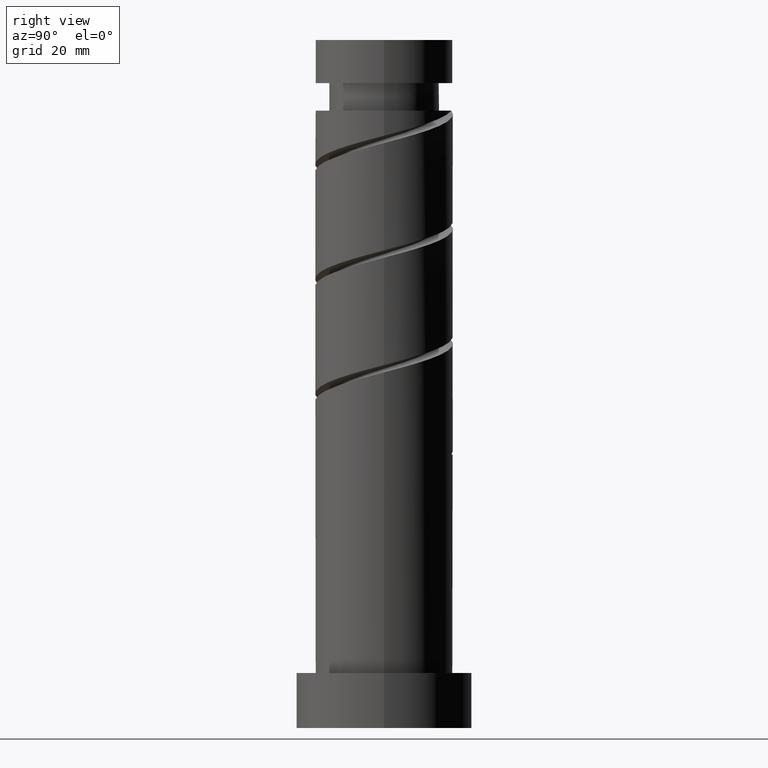
[diagram: clean part render]
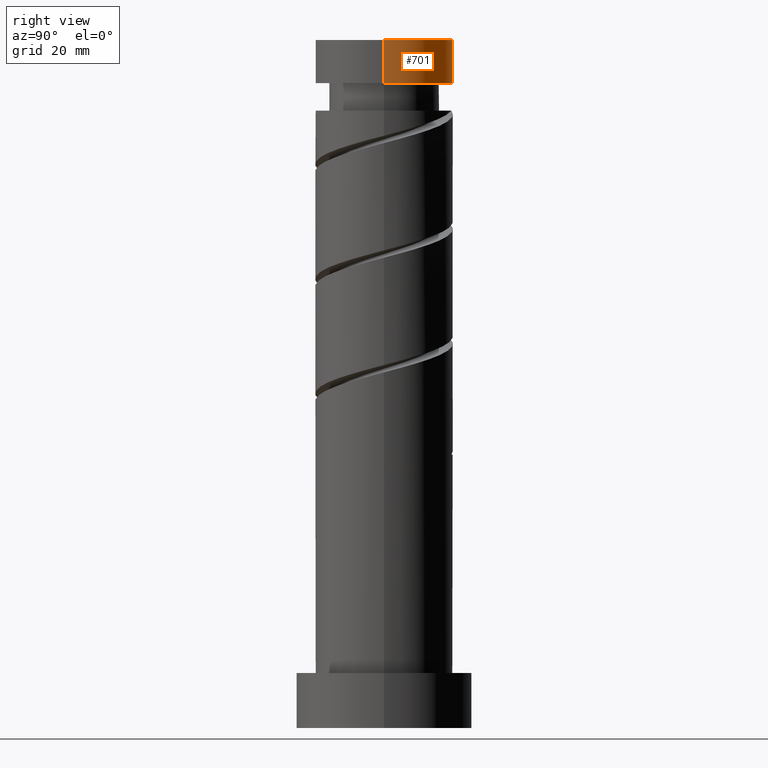
[diagram: same view with one face highlighted and labeled with its STEP entity id]
A machine part, right view. The second image highlights one B-rep face of the part: STEP entity #701.
In plain terms, the highlighted cylindrical surface (partial cylindrical patch) has radius 12.5 mm, axis along (-0, -0, -1).
Its self-contained STEP definition (entity closure, byte-faithful):
#5 = CYLINDRICAL_SURFACE ( 'NONE', #1302, 12.50000000000000000 ) ;
#86 = VECTOR ( 'NONE', #1392, 1000.000000000000000 ) ;
#118 = DIRECTION ( 'NONE',  ( -1.000000000000000000, 0.000000000000000000, 0.000000000000000000 ) ) ;
#134 = DIRECTION ( 'NONE',  ( -0.000000000000000000, -0.000000000000000000, -1.000000000000000000 ) ) ;
#208 = CARTESIAN_POINT ( 'NONE',  ( 12.50000000000000000, 1.530808498934191521E-15, 125.0000000000000000 ) ) ;
#282 = EDGE_CURVE ( 'NONE', #1431, #537, #778, .T. ) ;
#289 = ORIENTED_EDGE ( 'NONE', *, *, #1026, .F. ) ;
#357 = EDGE_LOOP ( 'NONE', ( #289, #1339, #1488, #1494 ) ) ;
#390 = CARTESIAN_POINT ( 'NONE',  ( -12.49999999999999822, 0.000000000000000000, 117.1650261409417766 ) ) ;
#418 = EDGE_CURVE ( 'NONE', #1029, #913, #801, .T. ) ;
#537 = VERTEX_POINT ( 'NONE', #1293 ) ;
#540 = CARTESIAN_POINT ( 'NONE',  ( -12.50000000000000000, 0.000000000000000000, 125.0000000000000000 ) ) ;
#542 = CARTESIAN_POINT ( 'NONE',  ( 12.50000000000000000, 1.530808498934191521E-15, 125.0000000000000000 ) ) ;
#622 = DIRECTION ( 'NONE',  ( -1.000000000000000000, 0.000000000000000000, 0.000000000000000000 ) ) ;
#661 = DIRECTION ( 'NONE',  ( 0.000000000000000000, 0.000000000000000000, 1.000000000000000000 ) ) ;
#699 = CIRCLE ( 'NONE', #1253, 12.49999999999999822 ) ;
#701 = ADVANCED_FACE ( 'NONE', ( #986 ), #5, .T. ) ;
#722 = CIRCLE ( 'NONE', #1352, 12.50000000000000000 ) ;
#744 = CARTESIAN_POINT ( 'NONE',  ( 0.000000000000000000, 0.000000000000000000, 117.1650261409417766 ) ) ;
#778 = LINE ( 'NONE', #542, #86 ) ;
#801 = LINE ( 'NONE', #1195, #1279 ) ;
#837 = CARTESIAN_POINT ( 'NONE',  ( 0.000000000000000000, 0.000000000000000000, 125.0000000000000000 ) ) ;
#913 = VERTEX_POINT ( 'NONE', #390 ) ;
#986 = FACE_OUTER_BOUND ( 'NONE', #357, .T. ) ;
#1026 = EDGE_CURVE ( 'NONE', #1431, #1029, #722, .T. ) ;
#1029 = VERTEX_POINT ( 'NONE', #540 ) ;
#1143 = DIRECTION ( 'NONE',  ( 1.000000000000000000, 0.000000000000000000, 0.000000000000000000 ) ) ;
#1195 = CARTESIAN_POINT ( 'NONE',  ( -12.50000000000000000, 0.000000000000000000, 125.0000000000000000 ) ) ;
#1210 = DIRECTION ( 'NONE',  ( -0.000000000000000000, -0.000000000000000000, -1.000000000000000000 ) ) ;
#1253 = AXIS2_PLACEMENT_3D ( 'NONE', #744, #134, #622 ) ;
#1264 = CARTESIAN_POINT ( 'NONE',  ( 0.000000000000000000, 0.000000000000000000, 125.0000000000000000 ) ) ;
#1279 = VECTOR ( 'NONE', #1284, 1000.000000000000000 ) ;
#1284 = DIRECTION ( 'NONE',  ( -0.000000000000000000, -0.000000000000000000, -1.000000000000000000 ) ) ;
#1293 = CARTESIAN_POINT ( 'NONE',  ( 12.49999999999999822, 1.530808498934191324E-15, 117.1650261409417766 ) ) ;
#1302 = AXIS2_PLACEMENT_3D ( 'NONE', #837, #1210, #118 ) ;
#1339 = ORIENTED_EDGE ( 'NONE', *, *, #282, .T. ) ;
#1352 = AXIS2_PLACEMENT_3D ( 'NONE', #1264, #661, #1143 ) ;
#1392 = DIRECTION ( 'NONE',  ( -0.000000000000000000, -0.000000000000000000, -1.000000000000000000 ) ) ;
#1413 = EDGE_CURVE ( 'NONE', #913, #537, #699, .T. ) ;
#1431 = VERTEX_POINT ( 'NONE', #208 ) ;
#1488 = ORIENTED_EDGE ( 'NONE', *, *, #1413, .F. ) ;
#1494 = ORIENTED_EDGE ( 'NONE', *, *, #418, .F. ) ;